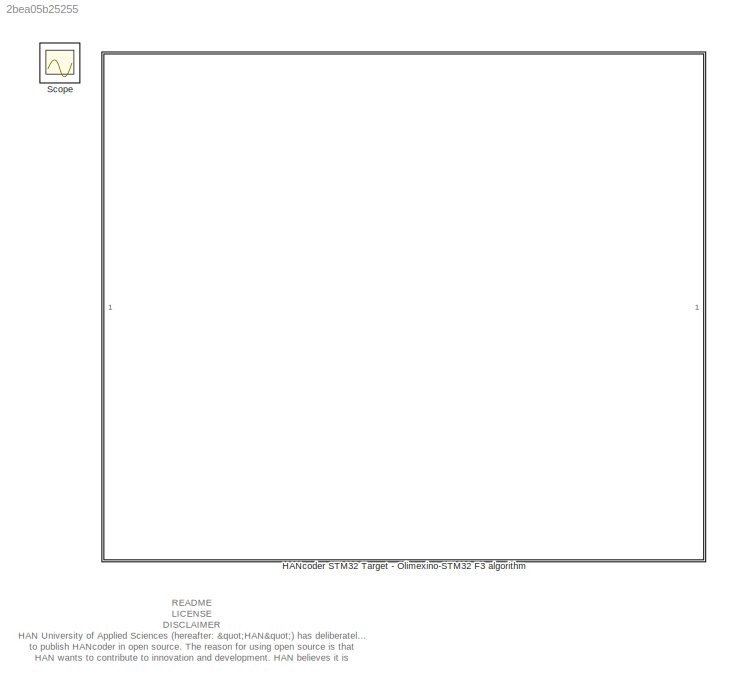
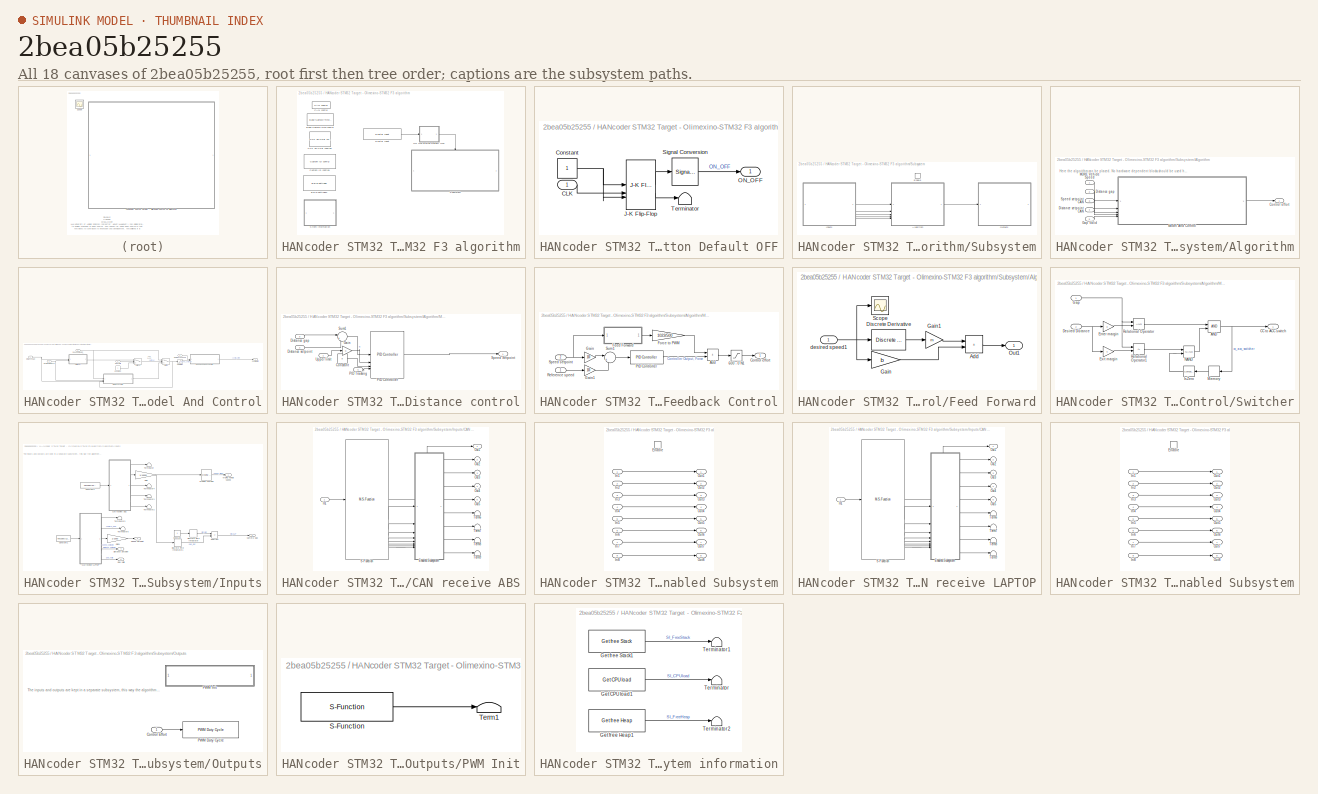
[diagram: thumbnail index - all 18 canvases of the model, root first then tree order]
MODEL slx_2bea05b25255
KIND model
CONFIG AbsTol = auto
CONFIG EnableMultiTasking = off
CONFIG FixedStep = 0.01
CONFIG MaxStep = auto
CONFIG MinStep = auto
CONFIG PreLoadFcn = librarySetup\neval([bdroot,'_startup']) %Calling [modelName]_startup.m
CONFIG RelTol = 1e-3
CONFIG SampleTimeConstraint = Unconstrained
CONFIG SolverName = FixedStepDiscrete
CONFIG StartTime = 0.0
CONFIG StopTime = 2
BLOCK [SubSystem] HANcoder STM32 Target - Olimexino-STM32 F3 algorithm
BLOCK [Reference] HANcoder STM32 Target - Olimexino-STM32 F3 algorithm/Base Sample Time config  REF=HANcoder_STM32_Target/Olimexino STM32 F3/System Config/Base Sample Time config
  Description = HANcoder Target STM32-Olimexino blockset version 1.2
  SourceBlock = HANcoder_STM32_Target/Olimexino STM32 F3/System Config/Base Sample Time config
  SourceProductName = HANcoder STM32 Target v1.2
  SourceType = Base Sample Time config
  Tag = HANcoder_TARGET_STM32_F3_Olimexino
  UserDataPersistent = on
BLOCK [Reference] HANcoder STM32 Target - Olimexino-STM32 F3 algorithm/Build settings1  REF=HANcoder_STM32_Target/Olimexino STM32 F3/System Config/Build settings
  SourceBlock = HANcoder_STM32_Target/Olimexino STM32 F3/System Config/Build settings
  SourceProductName = HANcoder STM32 Target v1.2
  SourceType = Build Settings
  Tag = HANcoder_TARGET_STM32_F3_Olimexino
  UserDataPersistent = on
BLOCK [Reference] HANcoder STM32 Target - Olimexino-STM32 F3 algorithm/CAN config  REF=HANcoder_STM32_Target/Olimexino STM32/System Config/CAN config
  SourceBlock = HANcoder_STM32_Target/Olimexino STM32/System Config/CAN config
  SourceProductName = HANcoder STM32 Target v1.2
  SourceType = CAN config
  Tag = HANcoder_TARGET_STM32_F3_Olimexino
  UserDataPersistent = on
BLOCK [Reference] HANcoder STM32 Target - Olimexino-STM32 F3 algorithm/Custom ID config1  REF=HANcoder_STM32_Target/Olimexino STM32 F3/System Config/Custom ID config
  SourceBlock = HANcoder_STM32_Target/Olimexino STM32 F3/System Config/Custom ID config
  SourceProductName = HANcoder STM32 Target v1.2
  SourceType = Custom ID config
  Tag = HANcoder_TARGET_STM32_F3_Olimexino
  UserDataPersistent = on
BLOCK [Reference] HANcoder STM32 Target - Olimexino-STM32 F3 algorithm/Digital Input  REF=HANcoder_STM32_Target/Olimexino STM32 F3/Digital Inputs/Digital Input
  SourceBlock = HANcoder_STM32_Target/Olimexino STM32 F3/Digital Inputs/Digital Input
  SourceProductName = HANcoder STM32 Target v1.2
  SourceType = Digital Input
  Tag = HANcoder_TARGET_STM32_F3_Olimexino
  UserDataPersistent = on
BLOCK [SubSystem] HANcoder STM32 Target - Olimexino-STM32 F3 algorithm/ON OFF Button Default OFF
BLOCK [Inport] HANcoder STM32 Target - Olimexino-STM32 F3 algorithm/ON OFF Button Default OFF/CLK
BLOCK [Constant] HANcoder STM32 Target - Olimexino-STM32 F3 algorithm/ON OFF Button Default OFF/Constant
  OutDataTypeStr = boolean
BLOCK [Reference] HANcoder STM32 Target - Olimexino-STM32 F3 algorithm/ON OFF Button Default OFF/J-K Flip-Flop  REF=simulink_extras/Flip Flops/J-K
Flip-Flop
  SourceBlock = simulink_extras/Flip Flops/J-K\nFlip-Flop
  SourceType = JKFlipFlop
BLOCK [Outport] HANcoder STM32 Target - Olimexino-STM32 F3 algorithm/ON OFF Button Default OFF/ON_OFF
BLOCK [SignalConversion] HANcoder STM32 Target - Olimexino-STM32 F3 algorithm/ON OFF Button Default OFF/Signal Conversion
  OverrideOpt = off
BLOCK [Terminator] HANcoder STM32 Target - Olimexino-STM32 F3 algorithm/ON OFF Button Default OFF/Terminator
BLOCK [SubSystem] HANcoder STM32 Target - Olimexino-STM32 F3 algorithm/Subsystem
BLOCK [SubSystem] HANcoder STM32 Target - Olimexino-STM32 F3 algorithm/Subsystem/Algorithm
BLOCK [Outport] HANcoder STM32 Target - Olimexino-STM32 F3 algorithm/Subsystem/Algorithm/Control effort
BLOCK [Inport] HANcoder STM32 Target - Olimexino-STM32 F3 algorithm/Subsystem/Algorithm/Distance gap
  Port = 2
BLOCK [Inport] HANcoder STM32 Target - Olimexino-STM32 F3 algorithm/Subsystem/Algorithm/Distance setpoint CAN
  Port = 4
BLOCK [Inport] HANcoder STM32 Target - Olimexino-STM32 F3 algorithm/Subsystem/Algorithm/Gap Valid
  Port = 5
BLOCK [Inport] HANcoder STM32 Target - Olimexino-STM32 F3 algorithm/Subsystem/Algorithm/MORE Vehicle Speed
BLOCK [SubSystem] HANcoder STM32 Target - Olimexino-STM32 F3 algorithm/Subsystem/Algorithm/Model And Control
BLOCK [Constant] HANcoder STM32 Target - Olimexino-STM32 F3 algorithm/Subsystem/Algorithm/Model And Control/Constant
BLOCK [Outport] HANcoder STM32 Target - Olimexino-STM32 F3 algorithm/Subsystem/Algorithm/Model And Control/Control effort
BLOCK [Inport] HANcoder STM32 Target - Olimexino-STM32 F3 algorithm/Subsystem/Algorithm/Model And Control/Desired Distance
  Port = 4
BLOCK [Inport] HANcoder STM32 Target - Olimexino-STM32 F3 algorithm/Subsystem/Algorithm/Model And Control/Distance Gap
  Port = 2
BLOCK [SubSystem] HANcoder STM32 Target - Olimexino-STM32 F3 algorithm/Subsystem/Algorithm/Model And Control/Distance control
BLOCK [Constant] HANcoder STM32 Target - Olimexino-STM32 F3 algorithm/Subsystem/Algorithm/Model And Control/Distance control/Constant
  Value = 0
BLOCK [Inport] HANcoder STM32 Target - Olimexino-STM32 F3 algorithm/Subsystem/Algorithm/Model And Control/Distance control/Distance gap
  Port = 3
BLOCK [Inport] HANcoder STM32 Target - Olimexino-STM32 F3 algorithm/Subsystem/Algorithm/Model And Control/Distance control/Distance setpoint
  Port = 2
BLOCK [Gain] HANcoder STM32 Target - Olimexino-STM32 F3 algorithm/Subsystem/Algorithm/Model And Control/Distance control/Gain
  OutDataTypeStr = double
BLOCK [Reference] HANcoder STM32 Target - Olimexino-STM32 F3 algorithm/Subsystem/Algorithm/Model And Control/Distance control/PID Controller  REF=slpidlib/PID Controller
  SourceBlock = slpidlib/PID Controller
  SourceType = PID 1dof
BLOCK [Inport] HANcoder STM32 Target - Olimexino-STM32 F3 algorithm/Subsystem/Algorithm/Model And Control/Distance control/PID Tracking
  Port = 4
BLOCK [Outport] HANcoder STM32 Target - Olimexino-STM32 F3 algorithm/Subsystem/Algorithm/Model And Control/Distance control/Speed Setpoint
BLOCK [Sum] HANcoder STM32 Target - Olimexino-STM32 F3 algorithm/Subsystem/Algorithm/Model And Control/Distance control/Sum1
  AccumDataTypeStr = double
  Inputs = |+-
BLOCK [Inport] HANcoder STM32 Target - Olimexino-STM32 F3 algorithm/Subsystem/Algorithm/Model And Control/Distance control/Upper limit
BLOCK [Inport] HANcoder STM32 Target - Olimexino-STM32 F3 algorithm/Subsystem/Algorithm/Model And Control/Gap Valid
  Port = 5
BLOCK [Inport] HANcoder STM32 Target - Olimexino-STM32 F3 algorithm/Subsystem/Algorithm/Model And Control/Reference speed
BLOCK [Saturate] HANcoder STM32 Target - Olimexino-STM32 F3 algorithm/Subsystem/Algorithm/Model And Control/Saturation
  LowerLimit = 0
  UpperLimit = 3
BLOCK [SubSystem] HANcoder STM32 Target - Olimexino-STM32 F3 algorithm/Subsystem/Algorithm/Model And Control/Speed Feedback Control
BLOCK [Saturate] HANcoder STM32 Target - Olimexino-STM32 F3 algorithm/Subsystem/Algorithm/Model And Control/Speed Feedback Control/600 - 0 N1
  LowerLimit = 0
  OutDataTypeStr = uint16
  UpperLimit = 600
BLOCK [Sum] HANcoder STM32 Target - Olimexino-STM32 F3 algorithm/Subsystem/Algorithm/Model And Control/Speed Feedback Control/Add
  IconShape = rectangular
BLOCK [Outport] HANcoder STM32 Target - Olimexino-STM32 F3 algorithm/Subsystem/Algorithm/Model And Control/Speed Feedback Control/Control effort
BLOCK [SubSystem] HANcoder STM32 Target - Olimexino-STM32 F3 algorithm/Subsystem/Algorithm/Model And Control/Speed Feedback Control/Feed Forward
BLOCK [Sum] HANcoder STM32 Target - Olimexino-STM32 F3 algorithm/Subsystem/Algorithm/Model And Control/Speed Feedback Control/Feed Forward/Add
  IconShape = rectangular
BLOCK [Reference] HANcoder STM32 Target - Olimexino-STM32 F3 algorithm/Subsystem/Algorithm/Model And Control/Speed Feedback Control/Feed Forward/Discrete Derivative  REF=simulink/Discrete/Discrete Derivative
  SourceBlock = simulink/Discrete/Discrete Derivative
  SourceType = Discrete Derivative
BLOCK [Gain] HANcoder STM32 Target - Olimexino-STM32 F3 algorithm/Subsystem/Algorithm/Model And Control/Speed Feedback Control/Feed Forward/Gain
  Gain = b
BLOCK [Gain] HANcoder STM32 Target - Olimexino-STM32 F3 algorithm/Subsystem/Algorithm/Model And Control/Speed Feedback Control/Feed Forward/Gain1
  Gain = m
BLOCK [Outport] HANcoder STM32 Target - Olimexino-STM32 F3 algorithm/Subsystem/Algorithm/Model And Control/Speed Feedback Control/Feed Forward/Out1
BLOCK [Scope] HANcoder STM32 Target - Olimexino-STM32 F3 algorithm/Subsystem/Algorithm/Model And Control/Speed Feedback Control/Feed Forward/Scope
  Floating = off
  NumInputPorts = 1
  ScopeSpecificationString = Simulink.scopes.TimeScopeBlockCfg('CurrentConfiguration', extmgr.ConfigurationSet(extmgr.Configuration('Core','General UI',true),extmgr.Configuration('Core','Source UI',true),extmgr.Configuration('Sources','WiredSimulink',true,'DataLoggingVariableName','ScopeData2'),extmgr.Configuration('Visuals','Time Domain',true,'SerializedDisplays',{struct('MinYLimReal','16.31702','MaxYLimReal','27.27582','YLa...<+1365ch>
BLOCK [Inport] HANcoder STM32 Target - Olimexino-STM32 F3 algorithm/Subsystem/Algorithm/Model And Control/Speed Feedback Control/Feed Forward/desired speed1
BLOCK [Gain] HANcoder STM32 Target - Olimexino-STM32 F3 algorithm/Subsystem/Algorithm/Model And Control/Speed Feedback Control/Force to PWM
  Gain = 1023/500
  OutDataTypeStr = int16
BLOCK [Gain] HANcoder STM32 Target - Olimexino-STM32 F3 algorithm/Subsystem/Algorithm/Model And Control/Speed Feedback Control/Gain
  Gain = 100
BLOCK [Gain] HANcoder STM32 Target - Olimexino-STM32 F3 algorithm/Subsystem/Algorithm/Model And Control/Speed Feedback Control/Gain1
  Gain = 100
BLOCK [Reference] HANcoder STM32 Target - Olimexino-STM32 F3 algorithm/Subsystem/Algorithm/Model And Control/Speed Feedback Control/PID Controller  REF=slpidlib/PID Controller
  SourceBlock = slpidlib/PID Controller
  SourceType = PID 1dof
BLOCK [Inport] HANcoder STM32 Target - Olimexino-STM32 F3 algorithm/Subsystem/Algorithm/Model And Control/Speed Feedback Control/Reference speed
BLOCK [Inport] HANcoder STM32 Target - Olimexino-STM32 F3 algorithm/Subsystem/Algorithm/Model And Control/Speed Feedback Control/Speed setpoint
  Port = 2
BLOCK [Sum] HANcoder STM32 Target - Olimexino-STM32 F3 algorithm/Subsystem/Algorithm/Model And Control/Speed Feedback Control/Sum1
  Inputs = |+-
BLOCK [Inport] HANcoder STM32 Target - Olimexino-STM32 F3 algorithm/Subsystem/Algorithm/Model And Control/Speed Setpoint_
  OutDataTypeStr = double
  Port = 3
BLOCK [Switch] HANcoder STM32 Target - Olimexino-STM32 F3 algorithm/Subsystem/Algorithm/Model And Control/Switch
  Criteria = u2 > Threshold
  InputSameDT = off
  SaturateOnIntegerOverflow = off
BLOCK [Switch] HANcoder STM32 Target - Olimexino-STM32 F3 algorithm/Subsystem/Algorithm/Model And Control/Switch1
  Criteria = u2 > Threshold
  InputSameDT = off
  SaturateOnIntegerOverflow = off
BLOCK [SubSystem] HANcoder STM32 Target - Olimexino-STM32 F3 algorithm/Subsystem/Algorithm/Model And Control/Switcher
BLOCK [Logic] HANcoder STM32 Target - Olimexino-STM32 F3 algorithm/Subsystem/Algorithm/Model And Control/Switcher/AND
  AllPortsSameDT = off
  IconShape = distinctive
  OutDataTypeStr = boolean
BLOCK [Outport] HANcoder STM32 Target - Olimexino-STM32 F3 algorithm/Subsystem/Algorithm/Model And Control/Switcher/CC to ACC switch
BLOCK [Inport] HANcoder STM32 Target - Olimexino-STM32 F3 algorithm/Subsystem/Algorithm/Model And Control/Switcher/Desired Distance
  Port = 2
BLOCK [Gain] HANcoder STM32 Target - Olimexino-STM32 F3 algorithm/Subsystem/Algorithm/Model And Control/Switcher/Enter margin
  Gain = 3
BLOCK [Gain] HANcoder STM32 Target - Olimexino-STM32 F3 algorithm/Subsystem/Algorithm/Model And Control/Switcher/Exit margin
  Gain = 4
BLOCK [Inport] HANcoder STM32 Target - Olimexino-STM32 F3 algorithm/Subsystem/Algorithm/Model And Control/Switcher/Gap
BLOCK [Reference] HANcoder STM32 Target - Olimexino-STM32 F3 algorithm/Subsystem/Algorithm/Model And Control/Switcher/IsZero  REF=simulink/Logic and Bit
Operations/Compare
To Zero
  SourceBlock = simulink/Logic and Bit\nOperations/Compare\nTo Zero
  SourceType = Compare To Zero
BLOCK [Memory] HANcoder STM32 Target - Olimexino-STM32 F3 algorithm/Subsystem/Algorithm/Model And Control/Switcher/Memory
BLOCK [Logic] HANcoder STM32 Target - Olimexino-STM32 F3 algorithm/Subsystem/Algorithm/Model And Control/Switcher/NAND
  AllPortsSameDT = off
  IconShape = distinctive
  Operator = NAND
  OutDataTypeStr = boolean
BLOCK [RelationalOperator] HANcoder STM32 Target - Olimexino-STM32 F3 algorithm/Subsystem/Algorithm/Model And Control/Switcher/Relational Operator
  InputSameDT = off
  OutDataTypeStr = boolean
  RndMeth = Simplest
BLOCK [RelationalOperator] HANcoder STM32 Target - Olimexino-STM32 F3 algorithm/Subsystem/Algorithm/Model And Control/Switcher/Relational Operator1
  InputSameDT = off
  Operator = <=
  OutDataTypeStr = boolean
  RndMeth = Simplest
BLOCK [Inport] HANcoder STM32 Target - Olimexino-STM32 F3 algorithm/Subsystem/Algorithm/Speed setpoint CAN
  Port = 3
BLOCK [EnablePort] HANcoder STM32 Target - Olimexino-STM32 F3 algorithm/Subsystem/Enable
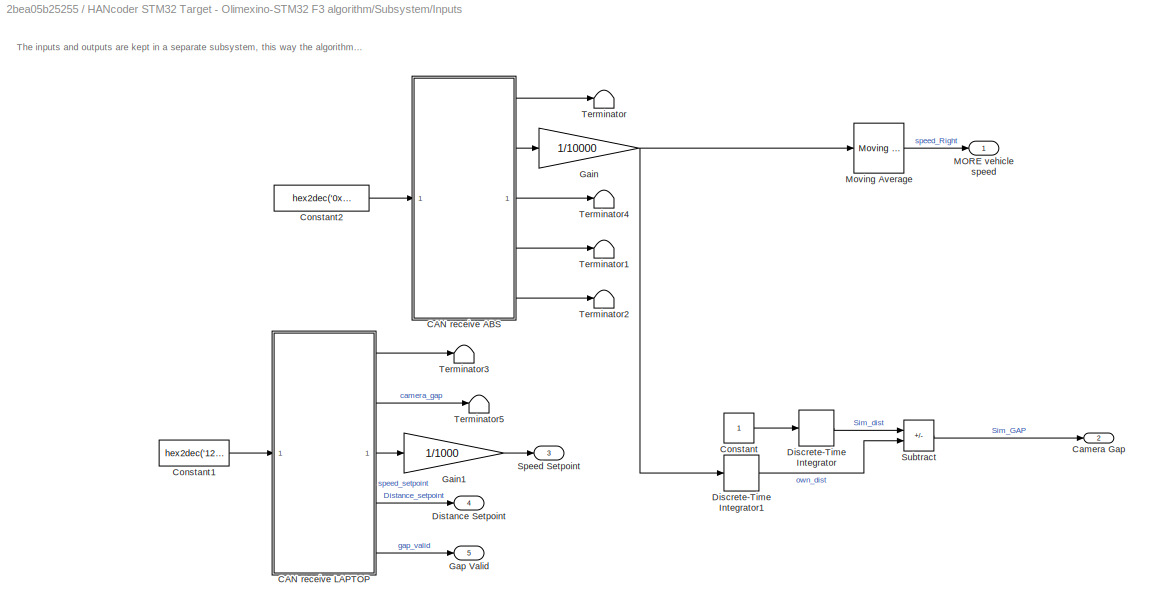
BLOCK [SubSystem] HANcoder STM32 Target - Olimexino-STM32 F3 algorithm/Subsystem/Inputs
BLOCK [SubSystem] HANcoder STM32 Target - Olimexino-STM32 F3 algorithm/Subsystem/Inputs/CAN receive ABS
  AncestorBlock = HANcoder_STM32_Target/STM32-P405/CAN/CAN/CAN receive
  LibrarySourceBlock = HANcoder_STM32_Target/STM32-P405/CAN/CAN/CAN receive
  MoveFcn = drawLogos
  Tag = HANcoder_TARGET_STM32_F3_Olimexino
  UserDataPersistent = on
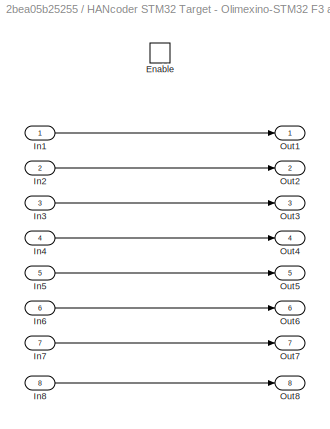
BLOCK [SubSystem] HANcoder STM32 Target - Olimexino-STM32 F3 algorithm/Subsystem/Inputs/CAN receive ABS/Enabled Subsystem
  TreatAsAtomicUnit = on
BLOCK [EnablePort] HANcoder STM32 Target - Olimexino-STM32 F3 algorithm/Subsystem/Inputs/CAN receive ABS/Enabled Subsystem/Enable
BLOCK [Inport] HANcoder STM32 Target - Olimexino-STM32 F3 algorithm/Subsystem/Inputs/CAN receive ABS/Enabled Subsystem/In1
BLOCK [Inport] HANcoder STM32 Target - Olimexino-STM32 F3 algorithm/Subsystem/Inputs/CAN receive ABS/Enabled Subsystem/In2
  Port = 2
BLOCK [Inport] HANcoder STM32 Target - Olimexino-STM32 F3 algorithm/Subsystem/Inputs/CAN receive ABS/Enabled Subsystem/In3
  Port = 3
BLOCK [Inport] HANcoder STM32 Target - Olimexino-STM32 F3 algorithm/Subsystem/Inputs/CAN receive ABS/Enabled Subsystem/In4
  Port = 4
BLOCK [Inport] HANcoder STM32 Target - Olimexino-STM32 F3 algorithm/Subsystem/Inputs/CAN receive ABS/Enabled Subsystem/In5
  Port = 5
BLOCK [Inport] HANcoder STM32 Target - Olimexino-STM32 F3 algorithm/Subsystem/Inputs/CAN receive ABS/Enabled Subsystem/In6
  Port = 6
BLOCK [Inport] HANcoder STM32 Target - Olimexino-STM32 F3 algorithm/Subsystem/Inputs/CAN receive ABS/Enabled Subsystem/In7
  Port = 7
BLOCK [Inport] HANcoder STM32 Target - Olimexino-STM32 F3 algorithm/Subsystem/Inputs/CAN receive ABS/Enabled Subsystem/In8
  Port = 8
BLOCK [Outport] HANcoder STM32 Target - Olimexino-STM32 F3 algorithm/Subsystem/Inputs/CAN receive ABS/Enabled Subsystem/Out1
  VectorParamsAs1DForOutWhenUnconnected = off
BLOCK [Outport] HANcoder STM32 Target - Olimexino-STM32 F3 algorithm/Subsystem/Inputs/CAN receive ABS/Enabled Subsystem/Out2
  Port = 2
  VectorParamsAs1DForOutWhenUnconnected = off
BLOCK [Outport] HANcoder STM32 Target - Olimexino-STM32 F3 algorithm/Subsystem/Inputs/CAN receive ABS/Enabled Subsystem/Out3
  Port = 3
  VectorParamsAs1DForOutWhenUnconnected = off
BLOCK [Outport] HANcoder STM32 Target - Olimexino-STM32 F3 algorithm/Subsystem/Inputs/CAN receive ABS/Enabled Subsystem/Out4
  Port = 4
  VectorParamsAs1DForOutWhenUnconnected = off
BLOCK [Outport] HANcoder STM32 Target - Olimexino-STM32 F3 algorithm/Subsystem/Inputs/CAN receive ABS/Enabled Subsystem/Out5
  Port = 5
  VectorParamsAs1DForOutWhenUnconnected = off
BLOCK [Outport] HANcoder STM32 Target - Olimexino-STM32 F3 algorithm/Subsystem/Inputs/CAN receive ABS/Enabled Subsystem/Out6
  Port = 6
  VectorParamsAs1DForOutWhenUnconnected = off
BLOCK [Outport] HANcoder STM32 Target - Olimexino-STM32 F3 algorithm/Subsystem/Inputs/CAN receive ABS/Enabled Subsystem/Out7
  Port = 7
  VectorParamsAs1DForOutWhenUnconnected = off
BLOCK [Outport] HANcoder STM32 Target - Olimexino-STM32 F3 algorithm/Subsystem/Inputs/CAN receive ABS/Enabled Subsystem/Out8
  Port = 8
  VectorParamsAs1DForOutWhenUnconnected = off
BLOCK [Inport] HANcoder STM32 Target - Olimexino-STM32 F3 algorithm/Subsystem/Inputs/CAN receive ABS/In1
BLOCK [Outport] HANcoder STM32 Target - Olimexino-STM32 F3 algorithm/Subsystem/Inputs/CAN receive ABS/Out1
  VectorParamsAs1DForOutWhenUnconnected = off
BLOCK [Outport] HANcoder STM32 Target - Olimexino-STM32 F3 algorithm/Subsystem/Inputs/CAN receive ABS/Out2
  Port = 2
  VectorParamsAs1DForOutWhenUnconnected = off
BLOCK [Outport] HANcoder STM32 Target - Olimexino-STM32 F3 algorithm/Subsystem/Inputs/CAN receive ABS/Out3
  Port = 3
BLOCK [Outport] HANcoder STM32 Target - Olimexino-STM32 F3 algorithm/Subsystem/Inputs/CAN receive ABS/Out4
  Port = 4
BLOCK [Outport] HANcoder STM32 Target - Olimexino-STM32 F3 algorithm/Subsystem/Inputs/CAN receive ABS/Out5
  Port = 5
BLOCK [M-S-Function] HANcoder STM32 Target - Olimexino-STM32 F3 algorithm/Subsystem/Inputs/CAN receive ABS/S-Function
  FunctionName = sfcn_can_receive
  Parameters = tsamp, canBus, outputNumber, dataType, byteOrder
BLOCK [Terminator] HANcoder STM32 Target - Olimexino-STM32 F3 algorithm/Subsystem/Inputs/CAN receive ABS/Term6
BLOCK [Terminator] HANcoder STM32 Target - Olimexino-STM32 F3 algorithm/Subsystem/Inputs/CAN receive ABS/Term7
BLOCK [Terminator] HANcoder STM32 Target - Olimexino-STM32 F3 algorithm/Subsystem/Inputs/CAN receive ABS/Term8
BLOCK [Terminator] HANcoder STM32 Target - Olimexino-STM32 F3 algorithm/Subsystem/Inputs/CAN receive ABS/Term9
BLOCK [SubSystem] HANcoder STM32 Target - Olimexino-STM32 F3 algorithm/Subsystem/Inputs/CAN receive LAPTOP
  AncestorBlock = HANcoder_STM32_Target/STM32-P405/CAN/CAN/CAN receive
  LibrarySourceBlock = HANcoder_STM32_Target/STM32-P405/CAN/CAN/CAN receive
  MoveFcn = drawLogos
  Tag = HANcoder_TARGET_STM32_F3_Olimexino
  UserDataPersistent = on
BLOCK [SubSystem] HANcoder STM32 Target - Olimexino-STM32 F3 algorithm/Subsystem/Inputs/CAN receive LAPTOP/Enabled Subsystem
  TreatAsAtomicUnit = on
BLOCK [EnablePort] HANcoder STM32 Target - Olimexino-STM32 F3 algorithm/Subsystem/Inputs/CAN receive LAPTOP/Enabled Subsystem/Enable
BLOCK [Inport] HANcoder STM32 Target - Olimexino-STM32 F3 algorithm/Subsystem/Inputs/CAN receive LAPTOP/Enabled Subsystem/In1
BLOCK [Inport] HANcoder STM32 Target - Olimexino-STM32 F3 algorithm/Subsystem/Inputs/CAN receive LAPTOP/Enabled Subsystem/In2
  Port = 2
BLOCK [Inport] HANcoder STM32 Target - Olimexino-STM32 F3 algorithm/Subsystem/Inputs/CAN receive LAPTOP/Enabled Subsystem/In3
  Port = 3
BLOCK [Inport] HANcoder STM32 Target - Olimexino-STM32 F3 algorithm/Subsystem/Inputs/CAN receive LAPTOP/Enabled Subsystem/In4
  Port = 4
BLOCK [Inport] HANcoder STM32 Target - Olimexino-STM32 F3 algorithm/Subsystem/Inputs/CAN receive LAPTOP/Enabled Subsystem/In5
  Port = 5
BLOCK [Inport] HANcoder STM32 Target - Olimexino-STM32 F3 algorithm/Subsystem/Inputs/CAN receive LAPTOP/Enabled Subsystem/In6
  Port = 6
BLOCK [Inport] HANcoder STM32 Target - Olimexino-STM32 F3 algorithm/Subsystem/Inputs/CAN receive LAPTOP/Enabled Subsystem/In7
  Port = 7
BLOCK [Inport] HANcoder STM32 Target - Olimexino-STM32 F3 algorithm/Subsystem/Inputs/CAN receive LAPTOP/Enabled Subsystem/In8
  Port = 8
BLOCK [Outport] HANcoder STM32 Target - Olimexino-STM32 F3 algorithm/Subsystem/Inputs/CAN receive LAPTOP/Enabled Subsystem/Out1
  VectorParamsAs1DForOutWhenUnconnected = off
BLOCK [Outport] HANcoder STM32 Target - Olimexino-STM32 F3 algorithm/Subsystem/Inputs/CAN receive LAPTOP/Enabled Subsystem/Out2
  Port = 2
  VectorParamsAs1DForOutWhenUnconnected = off
BLOCK [Outport] HANcoder STM32 Target - Olimexino-STM32 F3 algorithm/Subsystem/Inputs/CAN receive LAPTOP/Enabled Subsystem/Out3
  Port = 3
  VectorParamsAs1DForOutWhenUnconnected = off
BLOCK [Outport] HANcoder STM32 Target - Olimexino-STM32 F3 algorithm/Subsystem/Inputs/CAN receive LAPTOP/Enabled Subsystem/Out4
  Port = 4
  VectorParamsAs1DForOutWhenUnconnected = off
BLOCK [Outport] HANcoder STM32 Target - Olimexino-STM32 F3 algorithm/Subsystem/Inputs/CAN receive LAPTOP/Enabled Subsystem/Out5
  Port = 5
  VectorParamsAs1DForOutWhenUnconnected = off
BLOCK [Outport] HANcoder STM32 Target - Olimexino-STM32 F3 algorithm/Subsystem/Inputs/CAN receive LAPTOP/Enabled Subsystem/Out6
  Port = 6
  VectorParamsAs1DForOutWhenUnconnected = off
BLOCK [Outport] HANcoder STM32 Target - Olimexino-STM32 F3 algorithm/Subsystem/Inputs/CAN receive LAPTOP/Enabled Subsystem/Out7
  Port = 7
  VectorParamsAs1DForOutWhenUnconnected = off
BLOCK [Outport] HANcoder STM32 Target - Olimexino-STM32 F3 algorithm/Subsystem/Inputs/CAN receive LAPTOP/Enabled Subsystem/Out8
  Port = 8
  VectorParamsAs1DForOutWhenUnconnected = off
BLOCK [Inport] HANcoder STM32 Target - Olimexino-STM32 F3 algorithm/Subsystem/Inputs/CAN receive LAPTOP/In1
BLOCK [Outport] HANcoder STM32 Target - Olimexino-STM32 F3 algorithm/Subsystem/Inputs/CAN receive LAPTOP/Out1
  VectorParamsAs1DForOutWhenUnconnected = off
BLOCK [Outport] HANcoder STM32 Target - Olimexino-STM32 F3 algorithm/Subsystem/Inputs/CAN receive LAPTOP/Out2
  Port = 2
  VectorParamsAs1DForOutWhenUnconnected = off
BLOCK [Outport] HANcoder STM32 Target - Olimexino-STM32 F3 algorithm/Subsystem/Inputs/CAN receive LAPTOP/Out3
  Port = 3
BLOCK [Outport] HANcoder STM32 Target - Olimexino-STM32 F3 algorithm/Subsystem/Inputs/CAN receive LAPTOP/Out4
  Port = 4
BLOCK [Outport] HANcoder STM32 Target - Olimexino-STM32 F3 algorithm/Subsystem/Inputs/CAN receive LAPTOP/Out5
  Port = 5
BLOCK [M-S-Function] HANcoder STM32 Target - Olimexino-STM32 F3 algorithm/Subsystem/Inputs/CAN receive LAPTOP/S-Function
  FunctionName = sfcn_can_receive
  Parameters = tsamp, canBus, outputNumber, dataType, byteOrder
BLOCK [Terminator] HANcoder STM32 Target - Olimexino-STM32 F3 algorithm/Subsystem/Inputs/CAN receive LAPTOP/Term6
BLOCK [Terminator] HANcoder STM32 Target - Olimexino-STM32 F3 algorithm/Subsystem/Inputs/CAN receive LAPTOP/Term7
BLOCK [Terminator] HANcoder STM32 Target - Olimexino-STM32 F3 algorithm/Subsystem/Inputs/CAN receive LAPTOP/Term8
BLOCK [Terminator] HANcoder STM32 Target - Olimexino-STM32 F3 algorithm/Subsystem/Inputs/CAN receive LAPTOP/Term9
BLOCK [Outport] HANcoder STM32 Target - Olimexino-STM32 F3 algorithm/Subsystem/Inputs/Camera Gap
  Port = 2
BLOCK [Constant] HANcoder STM32 Target - Olimexino-STM32 F3 algorithm/Subsystem/Inputs/Constant
BLOCK [Constant] HANcoder STM32 Target - Olimexino-STM32 F3 algorithm/Subsystem/Inputs/Constant1
  OutDataTypeStr = uint32
  Value = hex2dec('123')
BLOCK [Constant] HANcoder STM32 Target - Olimexino-STM32 F3 algorithm/Subsystem/Inputs/Constant2
  OutDataTypeStr = uint32
  Value = hex2dec('0x01')
BLOCK [DiscreteIntegrator] HANcoder STM32 Target - Olimexino-STM32 F3 algorithm/Subsystem/Inputs/Discrete-Time Integrator
  ICPrevOutput = DiscIntNeverNeededParam
  ICPrevScaledInput = DiscIntNeverNeededParam
  InitialCondition = 20
  InitialConditionSetting = Auto
  SampleTime = -1
BLOCK [DiscreteIntegrator] HANcoder STM32 Target - Olimexino-STM32 F3 algorithm/Subsystem/Inputs/Discrete-Time Integrator1
  ICPrevOutput = DiscIntNeverNeededParam
  ICPrevScaledInput = DiscIntNeverNeededParam
  InitialConditionSetting = Auto
  OutDataTypeStr = double
  SampleTime = -1
BLOCK [Outport] HANcoder STM32 Target - Olimexino-STM32 F3 algorithm/Subsystem/Inputs/Distance Setpoint
  Port = 4
BLOCK [Gain] HANcoder STM32 Target - Olimexino-STM32 F3 algorithm/Subsystem/Inputs/Gain
  Gain = 1/10000
  OutDataTypeStr = double
BLOCK [Gain] HANcoder STM32 Target - Olimexino-STM32 F3 algorithm/Subsystem/Inputs/Gain1
  Gain = 1/1000
  OutDataTypeStr = double
BLOCK [Outport] HANcoder STM32 Target - Olimexino-STM32 F3 algorithm/Subsystem/Inputs/Gap Valid
  Port = 5
BLOCK [Outport] HANcoder STM32 Target - Olimexino-STM32 F3 algorithm/Subsystem/Inputs/MORE vehicle speed
BLOCK [Reference] HANcoder STM32 Target - Olimexino-STM32 F3 algorithm/Subsystem/Inputs/Moving Average  REF=dspstat3/Moving
Average
  SourceBlock = dspstat3/Moving\nAverage
  SourceType = dsp.simulink.MovingAverage
BLOCK [Outport] HANcoder STM32 Target - Olimexino-STM32 F3 algorithm/Subsystem/Inputs/Speed Setpoint
  OutDataTypeStr = double
  Port = 3
BLOCK [Sum] HANcoder STM32 Target - Olimexino-STM32 F3 algorithm/Subsystem/Inputs/Subtract
  IconShape = rectangular
  Inputs = +-
BLOCK [Terminator] HANcoder STM32 Target - Olimexino-STM32 F3 algorithm/Subsystem/Inputs/Terminator
BLOCK [Terminator] HANcoder STM32 Target - Olimexino-STM32 F3 algorithm/Subsystem/Inputs/Terminator1
BLOCK [Terminator] HANcoder STM32 Target - Olimexino-STM32 F3 algorithm/Subsystem/Inputs/Terminator2
BLOCK [Terminator] HANcoder STM32 Target - Olimexino-STM32 F3 algorithm/Subsystem/Inputs/Terminator3
BLOCK [Terminator] HANcoder STM32 Target - Olimexino-STM32 F3 algorithm/Subsystem/Inputs/Terminator4
BLOCK [Terminator] HANcoder STM32 Target - Olimexino-STM32 F3 algorithm/Subsystem/Inputs/Terminator5
BLOCK [SubSystem] HANcoder STM32 Target - Olimexino-STM32 F3 algorithm/Subsystem/Outputs
BLOCK [Inport] HANcoder STM32 Target - Olimexino-STM32 F3 algorithm/Subsystem/Outputs/Control Effort
BLOCK [Reference] HANcoder STM32 Target - Olimexino-STM32 F3 algorithm/Subsystem/Outputs/PWM Duty Cycle  REF=HANcoder_STM32_Target/Olimexino STM32 F3/PWM Outputs/PWM Duty Cycle
  SourceBlock = HANcoder_STM32_Target/Olimexino STM32 F3/PWM Outputs/PWM Duty Cycle
  SourceProductName = HANcoder STM32 Target v1.2
  SourceType = Pulse Width Modulation Set Duty Cycle
  Tag = HANcoder_TARGET_STM32_F3_Olimexino
  UserDataPersistent = on
BLOCK [SubSystem] HANcoder STM32 Target - Olimexino-STM32 F3 algorithm/Subsystem/Outputs/PWM Init
  AncestorBlock = HANcoder_STM32_Target/Olimexino STM32 F3/PWM Outputs/PWM Init
  CopyFcn = sfcn_pwmout_init_chk();
  LibrarySourceBlock = HANcoder_STM32_Target/Olimexino STM32 F3/PWM Outputs/PWM Init
  MoveFcn = drawLogos
  Tag = HANcoder_TARGET_STM32_F3_Olimexino
  UserDataPersistent = on
BLOCK [S-Function] HANcoder STM32 Target - Olimexino-STM32 F3 algorithm/Subsystem/Outputs/PWM Init/S-Function
  EnableBusSupport = off
  FunctionName = sfcn_pwmout_init
  SFcnIsStateOwnerBlock = off
  SFunctionDeploymentMode = off
BLOCK [Terminator] HANcoder STM32 Target - Olimexino-STM32 F3 algorithm/Subsystem/Outputs/PWM Init/Term1
BLOCK [SubSystem] HANcoder STM32 Target - Olimexino-STM32 F3 algorithm/Sytem information
BLOCK [Reference] HANcoder STM32 Target - Olimexino-STM32 F3 algorithm/Sytem information/Get CPU load1  REF=HANcoder_STM32_Target/Olimexino STM32 F3/System Management/Get CPU load
  SourceBlock = HANcoder_STM32_Target/Olimexino STM32 F3/System Management/Get CPU load
  SourceProductName = HANcoder STM32 Target v1.2
  SourceType = Get CPU load
  Tag = HANcoder_TARGET_STM32_F3_Olimexino
  UserDataPersistent = on
BLOCK [Reference] HANcoder STM32 Target - Olimexino-STM32 F3 algorithm/Sytem information/Get free Heap1  REF=HANcoder_STM32_Target/Olimexino STM32 F3/System Management/Get free Heap
  SourceBlock = HANcoder_STM32_Target/Olimexino STM32 F3/System Management/Get free Heap
  SourceProductName = HANcoder STM32 Target v1.2
  SourceType = Get free Heap
  Tag = HANcoder_TARGET_STM32_F3_Olimexino
  UserDataPersistent = on
BLOCK [Reference] HANcoder STM32 Target - Olimexino-STM32 F3 algorithm/Sytem information/Get free Stack1  REF=HANcoder_STM32_Target/Olimexino STM32 F3/System Management/Get free Stack
  SourceBlock = HANcoder_STM32_Target/Olimexino STM32 F3/System Management/Get free Stack
  SourceProductName = HANcoder STM32 Target v1.2
  SourceType = Get free Stack
  Tag = HANcoder_TARGET_STM32_F3_Olimexino
  UserDataPersistent = on
BLOCK [Terminator] HANcoder STM32 Target - Olimexino-STM32 F3 algorithm/Sytem information/Terminator
BLOCK [Terminator] HANcoder STM32 Target - Olimexino-STM32 F3 algorithm/Sytem information/Terminator1
BLOCK [Terminator] HANcoder STM32 Target - Olimexino-STM32 F3 algorithm/Sytem information/Terminator2
BLOCK [Reference] HANcoder STM32 Target - Olimexino-STM32 F3 algorithm/XCP on USB config1  REF=HANcoder_STM32_Target/Olimexino STM32 F3/System Config/XCP on USB config
  SourceBlock = HANcoder_STM32_Target/Olimexino STM32 F3/System Config/XCP on USB config
  SourceProductName = HANcoder STM32 Target v1.2
  SourceType = XCP on USB config
  Tag = HANcoder_TARGET_STM32_F3_Olimexino
  UserDataPersistent = on
BLOCK [Scope] Scope
  Floating = off
  IOType = viewer
  NumInputPorts = 1
  ScopeSpecificationString = C++SS(StrPVP('Open','off'),StrPVP('TimeRange','10'),StrPVP('TickLabels','OneTimeTick'),StrPVP('ShowLegends','off'),StrPVP('LimitDataPoints','on'),StrPVP('MaxDataPoints','7500'),StrPVP('SaveToWorkspace','off'),StrPVP('SaveName','ScopeData'),StrPVP('YMin','-1'),StrPVP('YMax','1'),StrPVP('BlockParamSampleInput','off'),StrPVP('ZoomMode','on'),StrPVP('Grid','on'),StrPVP('DataFormat','Array'),StrPVP('De...<+516ch>
ANNOTATION (root): README LICENSE DISCLAIMER HAN University of Applied Sciences (hereafter: "HAN") has deliberately chosen to publish HANcoder in open source. The reason for using open source is that HAN wants to contribute to innovation and development. HAN believes it is important to share knowledge and give others the opportunity to use HANcoder as a starting point for further developments. Because it is open sou...<+237ch>
ANNOTATION HANcoder STM32 Target - Olimexino-STM32 F3 algorithm/Subsystem/Algorithm: Here the algorithm can be placed. No hardware dependent blocks should be used here.
ANNOTATION HANcoder STM32 Target - Olimexino-STM32 F3 algorithm/Subsystem/Algorithm/Model And Control: 1: CC 0: ACC
ANNOTATION HANcoder STM32 Target - Olimexino-STM32 F3 algorithm/Subsystem/Inputs: The inputs and outputs are kept in a separate subsystem, this way the algorithm can easily be transferred to different hardware
ANNOTATION HANcoder STM32 Target - Olimexino-STM32 F3 algorithm/Subsystem/Outputs: The inputs and outputs are kept in a separate subsystem, this way the algorithm can easily be transferred to different hardware
LINE HANcoder STM32 Target - Olimexino-STM32 F3 algorithm/Digital Input:1 -> HANcoder STM32 Target - Olimexino-STM32 F3 algorithm/ON OFF Button Default OFF:1
LINE HANcoder STM32 Target - Olimexino-STM32 F3 algorithm/ON OFF Button Default OFF/CLK:1 -> HANcoder STM32 Target - Olimexino-STM32 F3 algorithm/ON OFF Button Default OFF/J-K Flip-Flop:2
NET HANcoder STM32 Target - Olimexino-STM32 F3 algorithm/ON OFF Button Default OFF/Constant:1 -> HANcoder STM32 Target - Olimexino-STM32 F3 algorithm/ON OFF Button Default OFF/J-K Flip-Flop:1, HANcoder STM32 Target - Olimexino-STM32 F3 algorithm/ON OFF Button Default OFF/J-K Flip-Flop:3
LINE HANcoder STM32 Target - Olimexino-STM32 F3 algorithm/ON OFF Button Default OFF/J-K Flip-Flop:1 -> HANcoder STM32 Target - Olimexino-STM32 F3 algorithm/ON OFF Button Default OFF/Signal Conversion:1
LINE HANcoder STM32 Target - Olimexino-STM32 F3 algorithm/ON OFF Button Default OFF/J-K Flip-Flop:2 -> HANcoder STM32 Target - Olimexino-STM32 F3 algorithm/ON OFF Button Default OFF/Terminator:1
LINE HANcoder STM32 Target - Olimexino-STM32 F3 algorithm/ON OFF Button Default OFF/Signal Conversion:1 -> HANcoder STM32 Target - Olimexino-STM32 F3 algorithm/ON OFF Button Default OFF/ON_OFF:1
LINE HANcoder STM32 Target - Olimexino-STM32 F3 algorithm/ON OFF Button Default OFF:1 -> HANcoder STM32 Target - Olimexino-STM32 F3 algorithm/Subsystem:enable
LINE HANcoder STM32 Target - Olimexino-STM32 F3 algorithm/Subsystem/Algorithm/Distance gap:1 -> HANcoder STM32 Target - Olimexino-STM32 F3 algorithm/Subsystem/Algorithm/Model And Control:2
LINE HANcoder STM32 Target - Olimexino-STM32 F3 algorithm/Subsystem/Algorithm/Distance setpoint CAN:1 -> HANcoder STM32 Target - Olimexino-STM32 F3 algorithm/Subsystem/Algorithm/Model And Control:4
LINE HANcoder STM32 Target - Olimexino-STM32 F3 algorithm/Subsystem/Algorithm/Gap Valid:1 -> HANcoder STM32 Target - Olimexino-STM32 F3 algorithm/Subsystem/Algorithm/Model And Control:5
LINE HANcoder STM32 Target - Olimexino-STM32 F3 algorithm/Subsystem/Algorithm/MORE Vehicle Speed:1 -> HANcoder STM32 Target - Olimexino-STM32 F3 algorithm/Subsystem/Algorithm/Model And Control:1
LINE HANcoder STM32 Target - Olimexino-STM32 F3 algorithm/Subsystem/Algorithm/Model And Control/Constant:1 -> HANcoder STM32 Target - Olimexino-STM32 F3 algorithm/Subsystem/Algorithm/Model And Control/Switch1:3
NET HANcoder STM32 Target - Olimexino-STM32 F3 algorithm/Subsystem/Algorithm/Model And Control/Desired Distance:1 -> HANcoder STM32 Target - Olimexino-STM32 F3 algorithm/Subsystem/Algorithm/Model And Control/Distance control:2, HANcoder STM32 Target - Olimexino-STM32 F3 algorithm/Subsystem/Algorithm/Model And Control/Switcher:2
NET HANcoder STM32 Target - Olimexino-STM32 F3 algorithm/Subsystem/Algorithm/Model And Control/Distance Gap:1 -> HANcoder STM32 Target - Olimexino-STM32 F3 algorithm/Subsystem/Algorithm/Model And Control/Distance control:3, HANcoder STM32 Target - Olimexino-STM32 F3 algorithm/Subsystem/Algorithm/Model And Control/Switcher:1
LINE HANcoder STM32 Target - Olimexino-STM32 F3 algorithm/Subsystem/Algorithm/Model And Control/Distance control/Constant:1 -> HANcoder STM32 Target - Olimexino-STM32 F3 algorithm/Subsystem/Algorithm/Model And Control/Distance control/PID Controller:3
LINE HANcoder STM32 Target - Olimexino-STM32 F3 algorithm/Subsystem/Algorithm/Model And Control/Distance control/Distance gap:1 -> HANcoder STM32 Target - Olimexino-STM32 F3 algorithm/Subsystem/Algorithm/Model And Control/Distance control/Sum1:1
LINE HANcoder STM32 Target - Olimexino-STM32 F3 algorithm/Subsystem/Algorithm/Model And Control/Distance control/Distance setpoint:1 -> HANcoder STM32 Target - Olimexino-STM32 F3 algorithm/Subsystem/Algorithm/Model And Control/Distance control/Sum1:2
LINE HANcoder STM32 Target - Olimexino-STM32 F3 algorithm/Subsystem/Algorithm/Model And Control/Distance control/Gain:1 -> HANcoder STM32 Target - Olimexino-STM32 F3 algorithm/Subsystem/Algorithm/Model And Control/Distance control/PID Controller:2
LINE HANcoder STM32 Target - Olimexino-STM32 F3 algorithm/Subsystem/Algorithm/Model And Control/Distance control/PID Controller:1 -> HANcoder STM32 Target - Olimexino-STM32 F3 algorithm/Subsystem/Algorithm/Model And Control/Distance control/Speed Setpoint:1
LINE HANcoder STM32 Target - Olimexino-STM32 F3 algorithm/Subsystem/Algorithm/Model And Control/Distance control/PID Tracking:1 -> HANcoder STM32 Target - Olimexino-STM32 F3 algorithm/Subsystem/Algorithm/Model And Control/Distance control/PID Controller:4
LINE HANcoder STM32 Target - Olimexino-STM32 F3 algorithm/Subsystem/Algorithm/Model And Control/Distance control/Sum1:1 -> HANcoder STM32 Target - Olimexino-STM32 F3 algorithm/Subsystem/Algorithm/Model And Control/Distance control/PID Controller:1
LINE HANcoder STM32 Target - Olimexino-STM32 F3 algorithm/Subsystem/Algorithm/Model And Control/Distance control/Upper limit:1 -> HANcoder STM32 Target - Olimexino-STM32 F3 algorithm/Subsystem/Algorithm/Model And Control/Distance control/Gain:1
LINE HANcoder STM32 Target - Olimexino-STM32 F3 algorithm/Subsystem/Algorithm/Model And Control/Distance control:1 -> HANcoder STM32 Target - Olimexino-STM32 F3 algorithm/Subsystem/Algorithm/Model And Control/Switch:3
LINE HANcoder STM32 Target - Olimexino-STM32 F3 algorithm/Subsystem/Algorithm/Model And Control/Gap Valid:1 -> HANcoder STM32 Target - Olimexino-STM32 F3 algorithm/Subsystem/Algorithm/Model And Control/Switch1:2
LINE HANcoder STM32 Target - Olimexino-STM32 F3 algorithm/Subsystem/Algorithm/Model And Control/Reference speed:1 -> HANcoder STM32 Target - Olimexino-STM32 F3 algorithm/Subsystem/Algorithm/Model And Control/Speed Feedback Control:1
LINE HANcoder STM32 Target - Olimexino-STM32 F3 algorithm/Subsystem/Algorithm/Model And Control/Saturation:1 -> HANcoder STM32 Target - Olimexino-STM32 F3 algorithm/Subsystem/Algorithm/Model And Control/Speed Feedback Control:2
LINE HANcoder STM32 Target - Olimexino-STM32 F3 algorithm/Subsystem/Algorithm/Model And Control/Speed Feedback Control/600 - 0 N1:1 -> HANcoder STM32 Target - Olimexino-STM32 F3 algorithm/Subsystem/Algorithm/Model And Control/Speed Feedback Control/Control effort:1
LINE HANcoder STM32 Target - Olimexino-STM32 F3 algorithm/Subsystem/Algorithm/Model And Control/Speed Feedback Control/Add:1 -> HANcoder STM32 Target - Olimexino-STM32 F3 algorithm/Subsystem/Algorithm/Model And Control/Speed Feedback Control/600 - 0 N1:1
LINE HANcoder STM32 Target - Olimexino-STM32 F3 algorithm/Subsystem/Algorithm/Model And Control/Speed Feedback Control/Feed Forward/Add:1 -> HANcoder STM32 Target - Olimexino-STM32 F3 algorithm/Subsystem/Algorithm/Model And Control/Speed Feedback Control/Feed Forward/Out1:1
LINE HANcoder STM32 Target - Olimexino-STM32 F3 algorithm/Subsystem/Algorithm/Model And Control/Speed Feedback Control/Feed Forward/Discrete Derivative:1 -> HANcoder STM32 Target - Olimexino-STM32 F3 algorithm/Subsystem/Algorithm/Model And Control/Speed Feedback Control/Feed Forward/Gain1:1
LINE HANcoder STM32 Target - Olimexino-STM32 F3 algorithm/Subsystem/Algorithm/Model And Control/Speed Feedback Control/Feed Forward/Gain1:1 -> HANcoder STM32 Target - Olimexino-STM32 F3 algorithm/Subsystem/Algorithm/Model And Control/Speed Feedback Control/Feed Forward/Add:1
LINE HANcoder STM32 Target - Olimexino-STM32 F3 algorithm/Subsystem/Algorithm/Model And Control/Speed Feedback Control/Feed Forward/Gain:1 -> HANcoder STM32 Target - Olimexino-STM32 F3 algorithm/Subsystem/Algorithm/Model And Control/Speed Feedback Control/Feed Forward/Add:2
NET HANcoder STM32 Target - Olimexino-STM32 F3 algorithm/Subsystem/Algorithm/Model And Control/Speed Feedback Control/Feed Forward/desired speed1:1 -> HANcoder STM32 Target - Olimexino-STM32 F3 algorithm/Subsystem/Algorithm/Model And Control/Speed Feedback Control/Feed Forward/Discrete Derivative:1, HANcoder STM32 Target - Olimexino-STM32 F3 algorithm/Subsystem/Algorithm/Model And Control/Speed Feedback Control/Feed Forward/Gain:1, HANcoder STM32 Target - Olimexino-STM32 F3 algorithm/Subsystem/Algorithm/Model And Control/Speed Feedback Control/Feed Forward/Scope:1
LINE HANcoder STM32 Target - Olimexino-STM32 F3 algorithm/Subsystem/Algorithm/Model And Control/Speed Feedback Control/Feed Forward:1 -> HANcoder STM32 Target - Olimexino-STM32 F3 algorithm/Subsystem/Algorithm/Model And Control/Speed Feedback Control/Force to PWM:1
LINE HANcoder STM32 Target - Olimexino-STM32 F3 algorithm/Subsystem/Algorithm/Model And Control/Speed Feedback Control/Force to PWM:1 -> HANcoder STM32 Target - Olimexino-STM32 F3 algorithm/Subsystem/Algorithm/Model And Control/Speed Feedback Control/Add:1
LINE HANcoder STM32 Target - Olimexino-STM32 F3 algorithm/Subsystem/Algorithm/Model And Control/Speed Feedback Control/Gain1:1 -> HANcoder STM32 Target - Olimexino-STM32 F3 algorithm/Subsystem/Algorithm/Model And Control/Speed Feedback Control/Sum1:2
LINE HANcoder STM32 Target - Olimexino-STM32 F3 algorithm/Subsystem/Algorithm/Model And Control/Speed Feedback Control/Gain:1 -> HANcoder STM32 Target - Olimexino-STM32 F3 algorithm/Subsystem/Algorithm/Model And Control/Speed Feedback Control/Sum1:1
LINE HANcoder STM32 Target - Olimexino-STM32 F3 algorithm/Subsystem/Algorithm/Model And Control/Speed Feedback Control/PID Controller:1 -> HANcoder STM32 Target - Olimexino-STM32 F3 algorithm/Subsystem/Algorithm/Model And Control/Speed Feedback Control/Add:2
LINE HANcoder STM32 Target - Olimexino-STM32 F3 algorithm/Subsystem/Algorithm/Model And Control/Speed Feedback Control/Reference speed:1 -> HANcoder STM32 Target - Olimexino-STM32 F3 algorithm/Subsystem/Algorithm/Model And Control/Speed Feedback Control/Gain1:1
NET HANcoder STM32 Target - Olimexino-STM32 F3 algorithm/Subsystem/Algorithm/Model And Control/Speed Feedback Control/Speed setpoint:1 -> HANcoder STM32 Target - Olimexino-STM32 F3 algorithm/Subsystem/Algorithm/Model And Control/Speed Feedback Control/Feed Forward:1, HANcoder STM32 Target - Olimexino-STM32 F3 algorithm/Subsystem/Algorithm/Model And Control/Speed Feedback Control/Gain:1
LINE HANcoder STM32 Target - Olimexino-STM32 F3 algorithm/Subsystem/Algorithm/Model And Control/Speed Feedback Control/Sum1:1 -> HANcoder STM32 Target - Olimexino-STM32 F3 algorithm/Subsystem/Algorithm/Model And Control/Speed Feedback Control/PID Controller:1
LINE HANcoder STM32 Target - Olimexino-STM32 F3 algorithm/Subsystem/Algorithm/Model And Control/Speed Feedback Control:1 -> HANcoder STM32 Target - Olimexino-STM32 F3 algorithm/Subsystem/Algorithm/Model And Control/Control effort:1
NET HANcoder STM32 Target - Olimexino-STM32 F3 algorithm/Subsystem/Algorithm/Model And Control/Speed Setpoint_:1 -> HANcoder STM32 Target - Olimexino-STM32 F3 algorithm/Subsystem/Algorithm/Model And Control/Distance control:1, HANcoder STM32 Target - Olimexino-STM32 F3 algorithm/Subsystem/Algorithm/Model And Control/Switch:1
LINE HANcoder STM32 Target - Olimexino-STM32 F3 algorithm/Subsystem/Algorithm/Model And Control/Switch1:1 -> HANcoder STM32 Target - Olimexino-STM32 F3 algorithm/Subsystem/Algorithm/Model And Control/Switch:2
NET HANcoder STM32 Target - Olimexino-STM32 F3 algorithm/Subsystem/Algorithm/Model And Control/Switch:1 -> HANcoder STM32 Target - Olimexino-STM32 F3 algorithm/Subsystem/Algorithm/Model And Control/Distance control:4, HANcoder STM32 Target - Olimexino-STM32 F3 algorithm/Subsystem/Algorithm/Model And Control/Saturation:1
NET HANcoder STM32 Target - Olimexino-STM32 F3 algorithm/Subsystem/Algorithm/Model And Control/Switcher/AND:1 -> HANcoder STM32 Target - Olimexino-STM32 F3 algorithm/Subsystem/Algorithm/Model And Control/Switcher/CC to ACC switch:1, HANcoder STM32 Target - Olimexino-STM32 F3 algorithm/Subsystem/Algorithm/Model And Control/Switcher/Memory:1
NET HANcoder STM32 Target - Olimexino-STM32 F3 algorithm/Subsystem/Algorithm/Model And Control/Switcher/Desired Distance:1 -> HANcoder STM32 Target - Olimexino-STM32 F3 algorithm/Subsystem/Algorithm/Model And Control/Switcher/Enter margin:1, HANcoder STM32 Target - Olimexino-STM32 F3 algorithm/Subsystem/Algorithm/Model And Control/Switcher/Exit margin:1
LINE HANcoder STM32 Target - Olimexino-STM32 F3 algorithm/Subsystem/Algorithm/Model And Control/Switcher/Enter margin:1 -> HANcoder STM32 Target - Olimexino-STM32 F3 algorithm/Subsystem/Algorithm/Model And Control/Switcher/Relational Operator:2
LINE HANcoder STM32 Target - Olimexino-STM32 F3 algorithm/Subsystem/Algorithm/Model And Control/Switcher/Exit margin:1 -> HANcoder STM32 Target - Olimexino-STM32 F3 algorithm/Subsystem/Algorithm/Model And Control/Switcher/Relational Operator1:2
NET HANcoder STM32 Target - Olimexino-STM32 F3 algorithm/Subsystem/Algorithm/Model And Control/Switcher/Gap:1 -> HANcoder STM32 Target - Olimexino-STM32 F3 algorithm/Subsystem/Algorithm/Model And Control/Switcher/Relational Operator1:1, HANcoder STM32 Target - Olimexino-STM32 F3 algorithm/Subsystem/Algorithm/Model And Control/Switcher/Relational Operator:1
LINE HANcoder STM32 Target - Olimexino-STM32 F3 algorithm/Subsystem/Algorithm/Model And Control/Switcher/IsZero:1 -> HANcoder STM32 Target - Olimexino-STM32 F3 algorithm/Subsystem/Algorithm/Model And Control/Switcher/NAND:2
LINE HANcoder STM32 Target - Olimexino-STM32 F3 algorithm/Subsystem/Algorithm/Model And Control/Switcher/Memory:1 -> HANcoder STM32 Target - Olimexino-STM32 F3 algorithm/Subsystem/Algorithm/Model And Control/Switcher/IsZero:1
LINE HANcoder STM32 Target - Olimexino-STM32 F3 algorithm/Subsystem/Algorithm/Model And Control/Switcher/NAND:1 -> HANcoder STM32 Target - Olimexino-STM32 F3 algorithm/Subsystem/Algorithm/Model And Control/Switcher/AND:2
LINE HANcoder STM32 Target - Olimexino-STM32 F3 algorithm/Subsystem/Algorithm/Model And Control/Switcher/Relational Operator1:1 -> HANcoder STM32 Target - Olimexino-STM32 F3 algorithm/Subsystem/Algorithm/Model And Control/Switcher/NAND:1
LINE HANcoder STM32 Target - Olimexino-STM32 F3 algorithm/Subsystem/Algorithm/Model And Control/Switcher/Relational Operator:1 -> HANcoder STM32 Target - Olimexino-STM32 F3 algorithm/Subsystem/Algorithm/Model And Control/Switcher/AND:1
LINE HANcoder STM32 Target - Olimexino-STM32 F3 algorithm/Subsystem/Algorithm/Model And Control/Switcher:1 -> HANcoder STM32 Target - Olimexino-STM32 F3 algorithm/Subsystem/Algorithm/Model And Control/Switch1:1
LINE HANcoder STM32 Target - Olimexino-STM32 F3 algorithm/Subsystem/Algorithm/Model And Control:1 -> HANcoder STM32 Target - Olimexino-STM32 F3 algorithm/Subsystem/Algorithm/Control effort:1
LINE HANcoder STM32 Target - Olimexino-STM32 F3 algorithm/Subsystem/Algorithm/Speed setpoint CAN:1 -> HANcoder STM32 Target - Olimexino-STM32 F3 algorithm/Subsystem/Algorithm/Model And Control:3
LINE HANcoder STM32 Target - Olimexino-STM32 F3 algorithm/Subsystem/Algorithm:1 -> HANcoder STM32 Target - Olimexino-STM32 F3 algorithm/Subsystem/Outputs:1
LINE HANcoder STM32 Target - Olimexino-STM32 F3 algorithm/Subsystem/Inputs/CAN receive ABS:1 -> HANcoder STM32 Target - Olimexino-STM32 F3 algorithm/Subsystem/Inputs/Terminator:1
LINE HANcoder STM32 Target - Olimexino-STM32 F3 algorithm/Subsystem/Inputs/CAN receive ABS:2 -> HANcoder STM32 Target - Olimexino-STM32 F3 algorithm/Subsystem/Inputs/Gain:1
LINE HANcoder STM32 Target - Olimexino-STM32 F3 algorithm/Subsystem/Inputs/CAN receive ABS:3 -> HANcoder STM32 Target - Olimexino-STM32 F3 algorithm/Subsystem/Inputs/Terminator4:1
LINE HANcoder STM32 Target - Olimexino-STM32 F3 algorithm/Subsystem/Inputs/CAN receive ABS:4 -> HANcoder STM32 Target - Olimexino-STM32 F3 algorithm/Subsystem/Inputs/Terminator1:1
LINE HANcoder STM32 Target - Olimexino-STM32 F3 algorithm/Subsystem/Inputs/CAN receive ABS:5 -> HANcoder STM32 Target - Olimexino-STM32 F3 algorithm/Subsystem/Inputs/Terminator2:1
LINE HANcoder STM32 Target - Olimexino-STM32 F3 algorithm/Subsystem/Inputs/CAN receive LAPTOP:1 -> HANcoder STM32 Target - Olimexino-STM32 F3 algorithm/Subsystem/Inputs/Terminator3:1
LINE HANcoder STM32 Target - Olimexino-STM32 F3 algorithm/Subsystem/Inputs/CAN receive LAPTOP:2 -> HANcoder STM32 Target - Olimexino-STM32 F3 algorithm/Subsystem/Inputs/Terminator5:1
LINE HANcoder STM32 Target - Olimexino-STM32 F3 algorithm/Subsystem/Inputs/CAN receive LAPTOP:3 -> HANcoder STM32 Target - Olimexino-STM32 F3 algorithm/Subsystem/Inputs/Gain1:1
LINE HANcoder STM32 Target - Olimexino-STM32 F3 algorithm/Subsystem/Inputs/CAN receive LAPTOP:4 -> HANcoder STM32 Target - Olimexino-STM32 F3 algorithm/Subsystem/Inputs/Distance Setpoint:1
LINE HANcoder STM32 Target - Olimexino-STM32 F3 algorithm/Subsystem/Inputs/CAN receive LAPTOP:5 -> HANcoder STM32 Target - Olimexino-STM32 F3 algorithm/Subsystem/Inputs/Gap Valid:1
LINE HANcoder STM32 Target - Olimexino-STM32 F3 algorithm/Subsystem/Inputs/Constant1:1 -> HANcoder STM32 Target - Olimexino-STM32 F3 algorithm/Subsystem/Inputs/CAN receive LAPTOP:1
LINE HANcoder STM32 Target - Olimexino-STM32 F3 algorithm/Subsystem/Inputs/Constant2:1 -> HANcoder STM32 Target - Olimexino-STM32 F3 algorithm/Subsystem/Inputs/CAN receive ABS:1
LINE HANcoder STM32 Target - Olimexino-STM32 F3 algorithm/Subsystem/Inputs/Constant:1 -> HANcoder STM32 Target - Olimexino-STM32 F3 algorithm/Subsystem/Inputs/Discrete-Time Integrator:1
LINE HANcoder STM32 Target - Olimexino-STM32 F3 algorithm/Subsystem/Inputs/Discrete-Time Integrator1:1 -> HANcoder STM32 Target - Olimexino-STM32 F3 algorithm/Subsystem/Inputs/Subtract:2
LINE HANcoder STM32 Target - Olimexino-STM32 F3 algorithm/Subsystem/Inputs/Discrete-Time Integrator:1 -> HANcoder STM32 Target - Olimexino-STM32 F3 algorithm/Subsystem/Inputs/Subtract:1
LINE HANcoder STM32 Target - Olimexino-STM32 F3 algorithm/Subsystem/Inputs/Gain1:1 -> HANcoder STM32 Target - Olimexino-STM32 F3 algorithm/Subsystem/Inputs/Speed Setpoint:1
NET HANcoder STM32 Target - Olimexino-STM32 F3 algorithm/Subsystem/Inputs/Gain:1 -> HANcoder STM32 Target - Olimexino-STM32 F3 algorithm/Subsystem/Inputs/Discrete-Time Integrator1:1, HANcoder STM32 Target - Olimexino-STM32 F3 algorithm/Subsystem/Inputs/Moving Average:1
LINE HANcoder STM32 Target - Olimexino-STM32 F3 algorithm/Subsystem/Inputs/Moving Average:1 -> HANcoder STM32 Target - Olimexino-STM32 F3 algorithm/Subsystem/Inputs/MORE vehicle speed:1
LINE HANcoder STM32 Target - Olimexino-STM32 F3 algorithm/Subsystem/Inputs/Subtract:1 -> HANcoder STM32 Target - Olimexino-STM32 F3 algorithm/Subsystem/Inputs/Camera Gap:1
LINE HANcoder STM32 Target - Olimexino-STM32 F3 algorithm/Subsystem/Inputs:1 -> HANcoder STM32 Target - Olimexino-STM32 F3 algorithm/Subsystem/Algorithm:1
LINE HANcoder STM32 Target - Olimexino-STM32 F3 algorithm/Subsystem/Inputs:2 -> HANcoder STM32 Target - Olimexino-STM32 F3 algorithm/Subsystem/Algorithm:2
LINE HANcoder STM32 Target - Olimexino-STM32 F3 algorithm/Subsystem/Inputs:3 -> HANcoder STM32 Target - Olimexino-STM32 F3 algorithm/Subsystem/Algorithm:3
LINE HANcoder STM32 Target - Olimexino-STM32 F3 algorithm/Subsystem/Inputs:4 -> HANcoder STM32 Target - Olimexino-STM32 F3 algorithm/Subsystem/Algorithm:4
LINE HANcoder STM32 Target - Olimexino-STM32 F3 algorithm/Subsystem/Inputs:5 -> HANcoder STM32 Target - Olimexino-STM32 F3 algorithm/Subsystem/Algorithm:5
LINE HANcoder STM32 Target - Olimexino-STM32 F3 algorithm/Subsystem/Outputs/Control Effort:1 -> HANcoder STM32 Target - Olimexino-STM32 F3 algorithm/Subsystem/Outputs/PWM Duty Cycle:1
LINE HANcoder STM32 Target - Olimexino-STM32 F3 algorithm/Sytem information/Get CPU load1:1 -> HANcoder STM32 Target - Olimexino-STM32 F3 algorithm/Sytem information/Terminator:1
LINE HANcoder STM32 Target - Olimexino-STM32 F3 algorithm/Sytem information/Get free Heap1:1 -> HANcoder STM32 Target - Olimexino-STM32 F3 algorithm/Sytem information/Terminator2:1
LINE HANcoder STM32 Target - Olimexino-STM32 F3 algorithm/Sytem information/Get free Stack1:1 -> HANcoder STM32 Target - Olimexino-STM32 F3 algorithm/Sytem information/Terminator1:1
note: NET lines group one-source signal fan-out (src -> all destinations, sorted); 1:1 wires keep LINE
